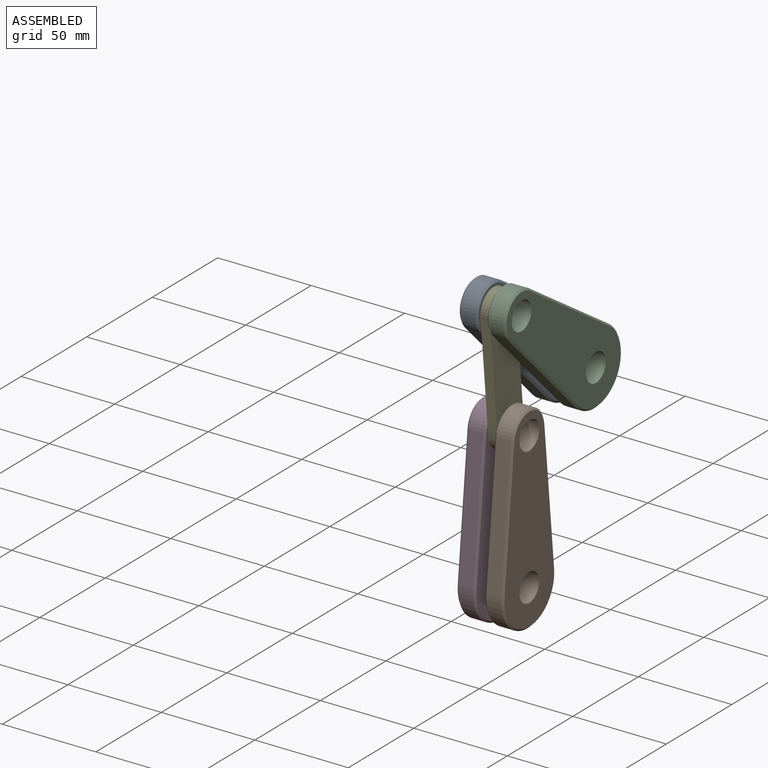
[diagram: assembled view]
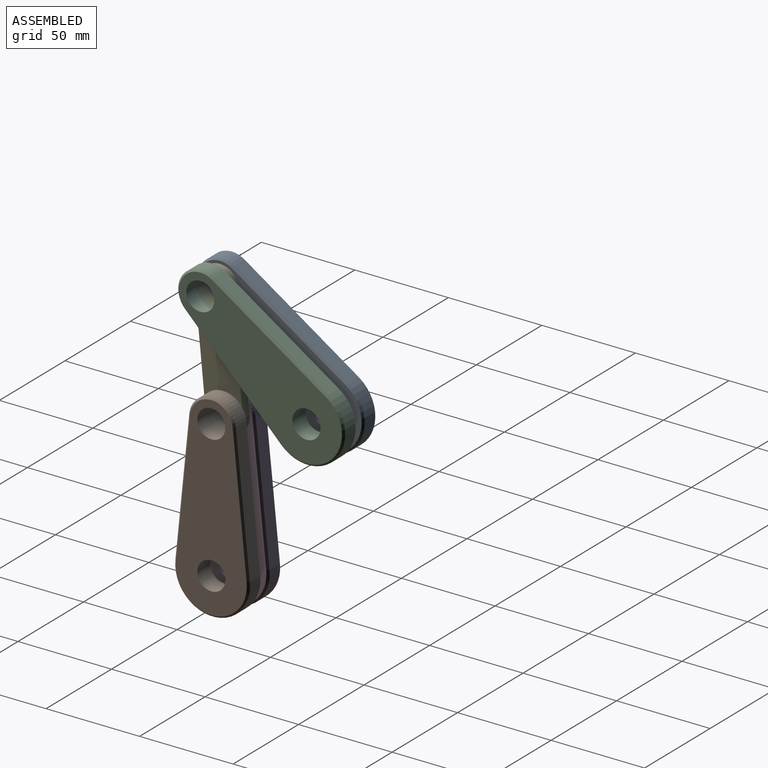
[diagram: assembled view, second angle]
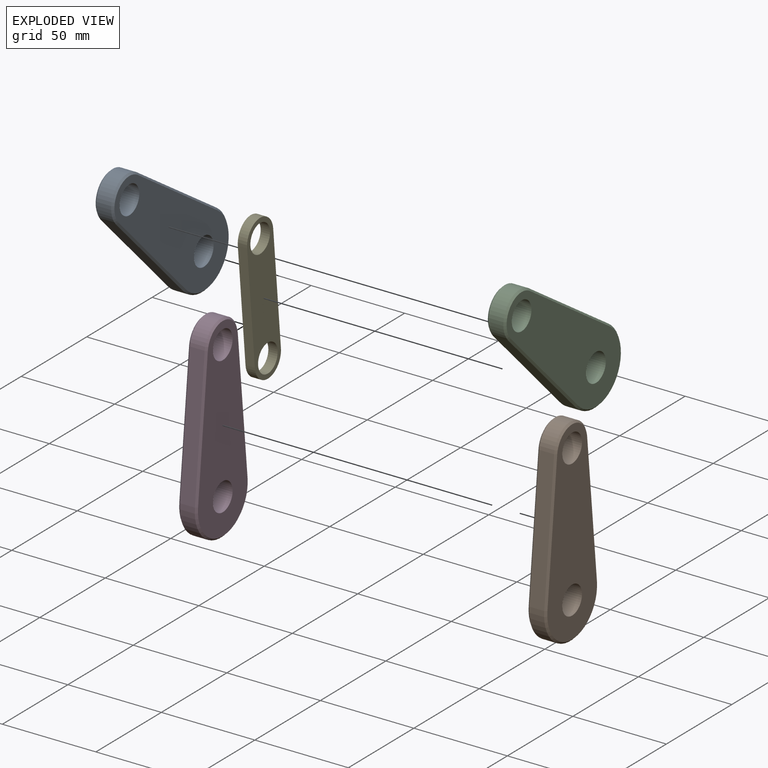
[diagram: exploded view]
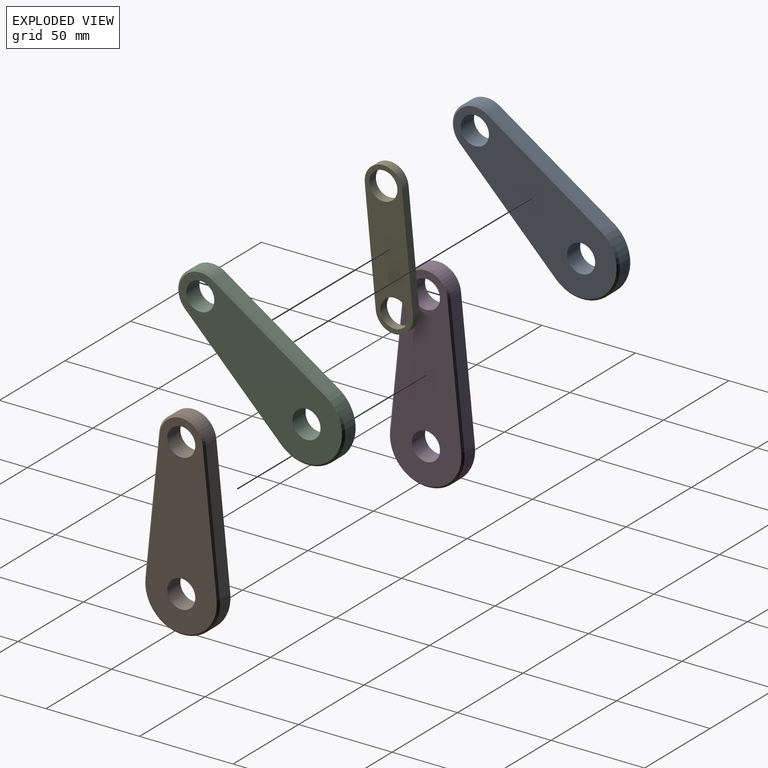
[diagram: exploded view, second angle]
ASSEMBLY  parts=5 mates=4
PART A: 16 faces, bbox 10x40x106 mm
  f0: plane 72.92x8mm, normal (0,-0.99,0.1), area 586.4mm2, adj f1,f4,f8,f13
  f1: cylinder r=20mm len=40mm, axis (-1,0,0), area 535.4mm2, adj f0,f2,f9,f15
  f2: plane 72.92x8mm, normal (0,0.99,0.1), area 586.4mm2, adj f1,f4,f11,f14
  f3: cylinder r=7.5mm len=15mm, axis (-1,0,0), area 471.2mm2, adj f6,f7
  f4: cylinder r=12.5mm len=24.82mm, axis (-1,0,0), area 290.3mm2, adj f0,f2,f10,f12
  f5: cylinder r=7.5mm len=15mm, axis (-1,0,0), area 471.2mm2, adj f6,f7
  f6: plane 103.97x38mm, normal (1,0,0), area 2673.9mm2, adj f3,f5,f8,f9,f10,f11
  f7: plane 103.97x38mm, normal (-1,0,0), area 2673.9mm2, adj f3,f5,f12,f13,f14,f15
  f8: plane 73.03x8.48mm, normal (0.71,-0.7,0.07), area 103.7mm2, adj f0,f6,f9,f10
  f9: cone r=19mm half-angle=45deg, axis (-1,0,0), area 92.3mm2, adj f1,f6,f8,f11
  f10: cone r=11.5mm half-angle=45deg, axis (-1,0,0), area 49.2mm2, adj f4,f6,f8,f11
  f11: plane 73.03x8.48mm, normal (0.71,0.7,0.07), area 103.7mm2, adj f2,f6,f9,f10
  f12: cone r=12.5mm half-angle=45deg, axis (1,0,0), area 49.2mm2, adj f4,f7,f13,f14
  f13: plane 73.03x8.48mm, normal (-0.71,-0.7,0.07), area 103.7mm2, adj f0,f7,f12,f15
  f14: plane 73.03x8.48mm, normal (-0.71,0.7,0.07), area 103.7mm2, adj f2,f7,f12,f15
  f15: cone r=20mm half-angle=45deg, axis (1,0,0), area 92.3mm2, adj f1,f7,f13,f14
PART B: same geometry as A
PART C: same geometry as A
PART D: same geometry as A
PART E: 8 faces, bbox 5x20x80.3 mm
  f0: plane 60.33x5mm, normal (0,-1,0), area 301.6mm2, adj f1,f3,f6,f7
  f1: cylinder r=10mm len=20mm, axis (-1,0,0), area 157.1mm2, adj f0,f2,f6,f7
  f2: plane 60.33x5mm, normal (0,1,0), area 301.6mm2, adj f1,f3,f6,f7
  f3: cylinder r=10mm len=20mm, axis (-1,0,0), area 157.1mm2, adj f0,f2,f6,f7
  f4: cylinder r=7.5mm len=15mm, axis (-1,0,0), area 235.6mm2, adj f6,f7
  f5: cylinder r=7.5mm len=15mm, axis (-1,0,0), area 235.6mm2, adj f6,f7
  f6: plane 80.33x20mm, normal (1,0,0), area 1167.3mm2, adj f0,f1,f2,f3,f4,f5
  f7: plane 80.33x20mm, normal (-1,0,0), area 1167.3mm2, adj f0,f1,f2,f3,f4,f5
PLACE A rot(axis=(1,0,0),50.6deg) t=(-39.16,34.04,39.74)mm
PLACE B t=(-24.16,8.43,-35.18)mm
PLACE C rot(axis=(1,0,0),50.6deg) t=(-24.16,34.04,39.74)mm
PLACE D t=(-39.16,8.43,-35.18)mm fixed
PLACE E rot(axis=(1,0,0),5.6deg) t=(-39.16,12.41,-34.99)mm
MATE revolute C.f3 <-> E.f3  axis (-1,0,0) through (-24.16,2.55,65.61)mm
MATE revolute E.f3 <-> A.f3  axis (-1,0,0) through (-29.16,2.55,65.61)mm
MATE revolute E.f1 <-> B.f3  axis (1,0,0) through (-24.16,8.43,5.57)mm
MATE revolute D.f3 <-> E.f1  axis (1,0,0) through (-29.16,8.43,5.57)mm
